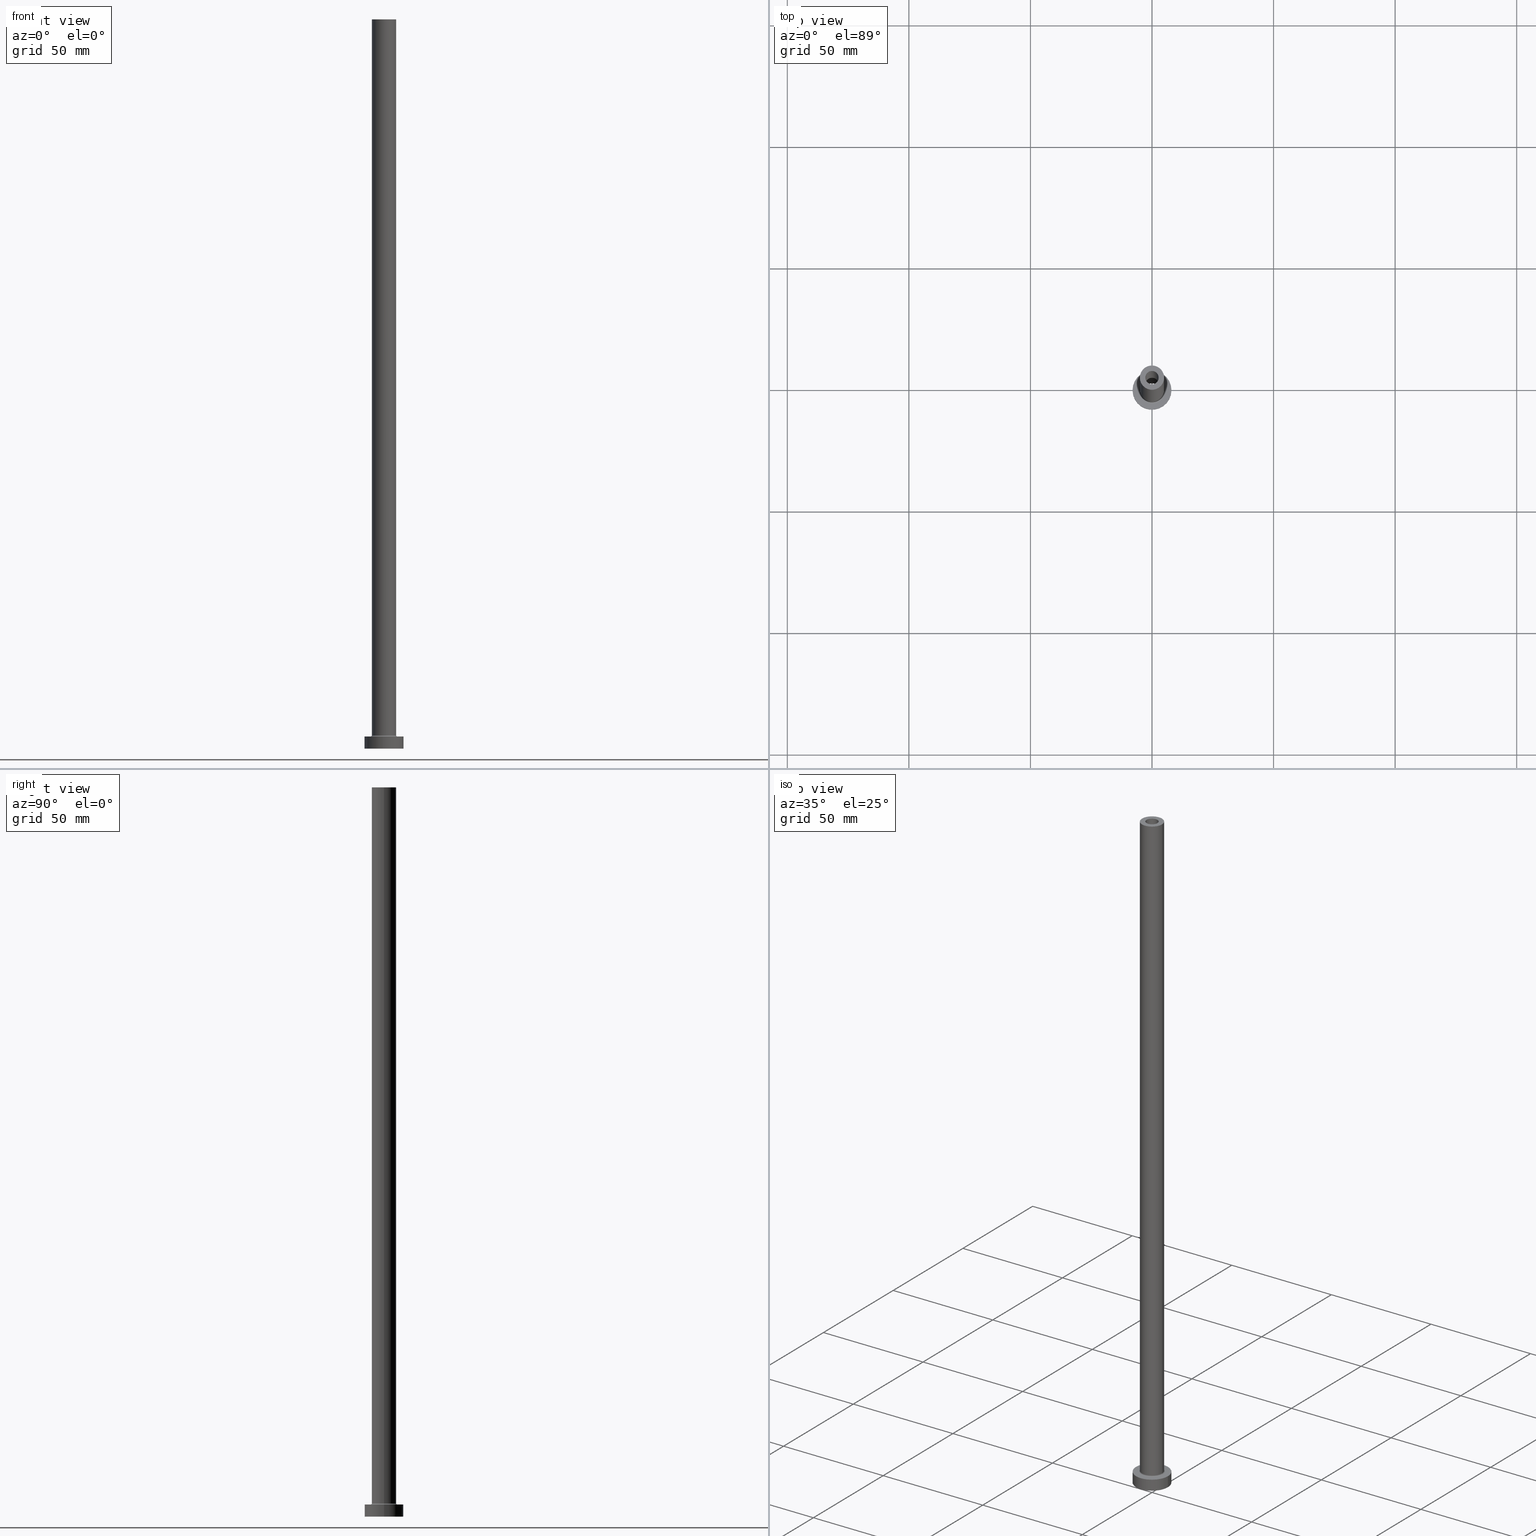
[diagram: canonical four-view strip — front | top / right | iso, engineering-drawing reading convention]
A machine part, canonical four-view strip (front | top / right | iso — engineering-drawing reading convention). The complete STEP part file that produces these views, byte-faithful:
ISO-10303-21;
HEADER;
FILE_DESCRIPTION (( 'STEP AP203' ),
    '1' );
FILE_NAME ('34f9.STEP',
    '2023-02-13T16:13:25',
    ( '' ),
    ( '' ),
    'SwSTEP 2.0',
    'SolidWorks 2019',
    '' );
FILE_SCHEMA (( 'CONFIG_CONTROL_DESIGN' ));
ENDSEC;

DATA;
#1 = CARTESIAN_POINT ( 'NONE',  ( -2.750000000000000000, 0.000000000000000000, 300.0000000000000000 ) ) ;
#2 = DIRECTION ( 'NONE',  ( 1.000000000000000000, 0.000000000000000000, 0.000000000000000000 ) ) ;
#3 = VECTOR ( 'NONE', #230, 1000.000000000000000 ) ;
#4 = COORDINATED_UNIVERSAL_TIME_OFFSET ( 1, 0, .AHEAD. ) ;
#5 = DIRECTION ( 'NONE',  ( -1.000000000000000000, 0.000000000000000000, 0.000000000000000000 ) ) ;
#6 = ORIENTED_EDGE ( 'NONE', *, *, #356, .F. ) ;
#7 = DIRECTION ( 'NONE',  ( 1.000000000000000000, 0.000000000000000000, 0.000000000000000000 ) ) ;
#8 = CIRCLE ( 'NONE', #131, 0.5000000000000004441 ) ;
#9 = SECURITY_CLASSIFICATION ( '', '', #457 ) ;
#10 = UNCERTAINTY_MEASURE_WITH_UNIT (LENGTH_MEASURE( 1.000000000000000082E-05 ), #425, 'distance_accuracy_value', 'NONE');
#11 = EDGE_CURVE ( 'NONE', #132, #237, #461, .T. ) ;
#12 = FACE_BOUND ( 'NONE', #147, .T. ) ;
#13 = COORDINATED_UNIVERSAL_TIME_OFFSET ( 1, 0, .AHEAD. ) ;
#14 = DIRECTION ( 'NONE',  ( 1.000000000000000000, 0.000000000000000000, 0.000000000000000000 ) ) ;
#15 = DIRECTION ( 'NONE',  ( 0.000000000000000000, 0.000000000000000000, 1.000000000000000000 ) ) ;
#16 = EDGE_LOOP ( 'NONE', ( #24, #163, #73, #449 ) ) ;
#17 = DIRECTION ( 'NONE',  ( 1.000000000000000000, 0.000000000000000000, 0.000000000000000000 ) ) ;
#18 = DIRECTION ( 'NONE',  ( 1.000000000000000000, 0.000000000000000000, 0.000000000000000000 ) ) ;
#19 = CIRCLE ( 'NONE', #149, 5.000000000000000000 ) ;
#20 = DIRECTION ( 'NONE',  ( 1.000000000000000000, 0.000000000000000000, 0.000000000000000000 ) ) ;
#21 = DIRECTION ( 'NONE',  ( 0.000000000000000000, 0.000000000000000000, 1.000000000000000000 ) ) ;
#22 = LINE ( 'NONE', #312, #194 ) ;
#23 = EDGE_LOOP ( 'NONE', ( #153, #373 ) ) ;
#24 = ORIENTED_EDGE ( 'NONE', *, *, #244, .F. ) ;
#25 = PERSON_AND_ORGANIZATION ( #434, #437 ) ;
#26 = DIRECTION ( 'NONE',  ( 0.000000000000000000, 0.000000000000000000, 1.000000000000000000 ) ) ;
#27 = PRODUCT_DEFINITION_FORMATION_WITH_SPECIFIED_SOURCE ( 'LIBOVOLN�', '', #351, .NOT_KNOWN. ) ;
#28 = DIRECTION ( 'NONE',  ( 1.000000000000000000, 0.000000000000000000, -0.000000000000000000 ) ) ;
#29 = CIRCLE ( 'NONE', #100, 5.000000000000000000 ) ;
#30 = CC_DESIGN_PERSON_AND_ORGANIZATION_ASSIGNMENT ( #320, #174, ( #27 ) ) ;
#31 = COORDINATED_UNIVERSAL_TIME_OFFSET ( 1, 0, .AHEAD. ) ;
#32 = EDGE_CURVE ( 'NONE', #406, #134, #430, .T. ) ;
#33 = APPLICATION_PROTOCOL_DEFINITION ( 'international standard', 'config_control_design', 1994, #432 ) ;
#34 = APPROVAL_PERSON_ORGANIZATION ( #228, #155, #439 ) ;
#35 = CARTESIAN_POINT ( 'NONE',  ( 8.000000000000000000, 9.797174393178825657E-16, 5.000000000000000000 ) ) ;
#36 = APPROVAL_STATUS ( 'not_yet_approved' ) ;
#37 = PERSON_AND_ORGANIZATION ( #434, #437 ) ;
#38 = ORIENTED_EDGE ( 'NONE', *, *, #388, .F. ) ;
#39 = ADVANCED_FACE ( 'NONE', ( #336 ), #79, .T. ) ;
#40 = ORIENTED_EDGE ( 'NONE', *, *, #431, .T. ) ;
#41 = DIRECTION ( 'NONE',  ( 1.000000000000000000, 0.000000000000000000, 0.000000000000000000 ) ) ;
#42 = PLANE ( 'NONE',  #191 ) ;
#43 = LOCAL_TIME ( 17, 13, 25.00000000000000000, #4 ) ;
#44 = AXIS2_PLACEMENT_3D ( 'NONE', #55, #162, #85 ) ;
#45 = CARTESIAN_POINT ( 'NONE',  ( 0.000000000000000000, 0.000000000000000000, 300.0000000000000000 ) ) ;
#46 = EDGE_CURVE ( 'NONE', #237, #132, #417, .T. ) ;
#47 = DIRECTION ( 'NONE',  ( 1.000000000000000000, 0.000000000000000000, 0.000000000000000000 ) ) ;
#48 = ORIENTED_EDGE ( 'NONE', *, *, #46, .T. ) ;
#49 = DIRECTION ( 'NONE',  ( -1.000000000000000000, 0.000000000000000000, 0.000000000000000000 ) ) ;
#50 = EDGE_CURVE ( 'NONE', #116, #111, #22, .T. ) ;
#51 = LINE ( 'NONE', #198, #274 ) ;
#52 = AXIS2_PLACEMENT_3D ( 'NONE', #263, #392, #2 ) ;
#53 = CC_DESIGN_SECURITY_CLASSIFICATION ( #9, ( #27 ) ) ;
#54 = CARTESIAN_POINT ( 'NONE',  ( 0.000000000000000000, 0.000000000000000000, 5.000000000000000000 ) ) ;
#55 = CARTESIAN_POINT ( 'NONE',  ( -5.500000000000000000, 6.735557395310442023E-16, 5.500000000000005329 ) ) ;
#56 = CARTESIAN_POINT ( 'NONE',  ( 0.000000000000000000, 0.000000000000000000, 5.000000000000000000 ) ) ;
#57 = ORIENTED_EDGE ( 'NONE', *, *, #356, .T. ) ;
#58 = DIRECTION ( 'NONE',  ( 0.000000000000000000, 0.000000000000000000, 1.000000000000000000 ) ) ;
#59 = TOROIDAL_SURFACE ( 'NONE', #299, 5.500000000000000000, 0.5000000000000000000 ) ;
#60 = AXIS2_PLACEMENT_3D ( 'NONE', #212, #378, #381 ) ;
#61 = ORIENTED_EDGE ( 'NONE', *, *, #401, .T. ) ;
#62 = CARTESIAN_POINT ( 'NONE',  ( 0.000000000000000000, 0.000000000000000000, 5.000000000000000000 ) ) ;
#63 = EDGE_CURVE ( 'NONE', #302, #132, #218, .T. ) ;
#64 = DIRECTION ( 'NONE',  ( 1.000000000000000000, 0.000000000000000000, 0.000000000000000000 ) ) ;
#65 = CALENDAR_DATE ( 2023, 13, 2 ) ;
#66 = APPLICATION_PROTOCOL_DEFINITION ( 'international standard', 'config_control_design', 1994, #455 ) ;
#67 = AXIS2_PLACEMENT_3D ( 'NONE', #80, #441, #240 ) ;
#68 = CIRCLE ( 'NONE', #204, 8.000000000000000000 ) ;
#69 = ADVANCED_FACE ( 'NONE', ( #211 ), #419, .F. ) ;
#70 = APPROVAL_ROLE ( '' ) ;
#71 = CARTESIAN_POINT ( 'NONE',  ( 0.000000000000000000, 0.000000000000000000, 255.0000000000000000 ) ) ;
#72 = APPROVAL ( #36, 'NEUR�EN�' ) ;
#73 = ORIENTED_EDGE ( 'NONE', *, *, #224, .T. ) ;
#74 = CIRCLE ( 'NONE', #393, 2.750000000000000000 ) ;
#75 = EDGE_LOOP ( 'NONE', ( #103, #120, #276, #193 ) ) ;
#76 = ORIENTED_EDGE ( 'NONE', *, *, #388, .T. ) ;
#77 = AXIS2_PLACEMENT_3D ( 'NONE', #62, #221, #223 ) ;
#78 = CARTESIAN_POINT ( 'NONE',  ( 0.000000000000000000, 0.000000000000000000, 300.0000000000000000 ) ) ;
#79 = CYLINDRICAL_SURFACE ( 'NONE', #229, 5.000000000000000000 ) ;
#80 = CARTESIAN_POINT ( 'NONE',  ( 0.000000000000000000, 0.000000000000000000, 300.0000000000000000 ) ) ;
#81 = ORIENTED_EDGE ( 'NONE', *, *, #311, .F. ) ;
#82 = CC_DESIGN_APPROVAL ( #236, ( #9 ) ) ;
#83 = LINE ( 'NONE', #161, #3 ) ;
#84 = ORIENTED_EDGE ( 'NONE', *, *, #11, .F. ) ;
#85 = DIRECTION ( 'NONE',  ( -1.000000000000000000, 1.224646799147351482E-16, 0.000000000000000000 ) ) ;
#86 = TOROIDAL_SURFACE ( 'NONE', #157, 5.500000000000000000, 0.5000000000000000000 ) ;
#87 = AXIS2_PLACEMENT_3D ( 'NONE', #130, #282, #280 ) ;
#88 = PERSON_AND_ORGANIZATION_ROLE ( 'creator' ) ;
#89 = ORIENTED_EDGE ( 'NONE', *, *, #101, .T. ) ;
#90 = ADVANCED_FACE ( 'NONE', ( #285, #93 ), #250, .F. ) ;
#91 = CARTESIAN_POINT ( 'NONE',  ( -5.000000000000000000, 0.000000000000000000, 300.0000000000000000 ) ) ;
#92 = EDGE_LOOP ( 'NONE', ( #48, #252 ) ) ;
#93 = FACE_OUTER_BOUND ( 'NONE', #303, .T. ) ;
#94 = ORIENTED_EDGE ( 'NONE', *, *, #296, .T. ) ;
#95 = LINE ( 'NONE', #35, #181 ) ;
#96 = CALENDAR_DATE ( 2023, 13, 2 ) ;
#97 = DIRECTION ( 'NONE',  ( -0.000000000000000000, -0.000000000000000000, -1.000000000000000000 ) ) ;
#98 = CYLINDRICAL_SURFACE ( 'NONE', #414, 8.000000000000000000 ) ;
#99 = FACE_OUTER_BOUND ( 'NONE', #129, .T. ) ;
#100 = AXIS2_PLACEMENT_3D ( 'NONE', #169, #456, #41 ) ;
#101 = EDGE_CURVE ( 'NONE', #220, #302, #29, .T. ) ;
#102 = ORIENTED_EDGE ( 'NONE', *, *, #50, .T. ) ;
#103 = ORIENTED_EDGE ( 'NONE', *, *, #128, .F. ) ;
#104 = PERSON_AND_ORGANIZATION ( #434, #437 ) ;
#105 = VERTEX_POINT ( 'NONE', #136 ) ;
#106 = CARTESIAN_POINT ( 'NONE',  ( 2.750000000000000000, 3.367778697655220519E-16, 300.0000000000000000 ) ) ;
#107 = VECTOR ( 'NONE', #394, 1000.000000000000000 ) ;
#108 = LOCAL_TIME ( 17, 13, 25.00000000000000000, #389 ) ;
#109 = DIRECTION ( 'NONE',  ( 0.000000000000000000, 0.000000000000000000, 1.000000000000000000 ) ) ;
#110 = EDGE_CURVE ( 'NONE', #215, #116, #150, .T. ) ;
#111 = VERTEX_POINT ( 'NONE', #173 ) ;
#112 = CARTESIAN_POINT ( 'NONE',  ( 0.000000000000000000, 0.000000000000000000, 5.000000000000000000 ) ) ;
#113 = ADVANCED_BREP_SHAPE_REPRESENTATION ( '34f9', ( #197, #396 ), #370 ) ;
#114 = ORIENTED_EDGE ( 'NONE', *, *, #448, .F. ) ;
#115 = CC_DESIGN_PERSON_AND_ORGANIZATION_ASSIGNMENT ( #104, #166, ( #27 ) ) ;
#116 = VERTEX_POINT ( 'NONE', #106 ) ;
#117 = ORIENTED_EDGE ( 'NONE', *, *, #110, .F. ) ;
#118 = ADVANCED_FACE ( 'NONE', ( #423, #99 ), #386, .T. ) ;
#119 = DIRECTION ( 'NONE',  ( 0.000000000000000000, 0.000000000000000000, 1.000000000000000000 ) ) ;
#120 = ORIENTED_EDGE ( 'NONE', *, *, #146, .T. ) ;
#121 = EDGE_CURVE ( 'NONE', #215, #440, #325, .T. ) ;
#122 = EDGE_LOOP ( 'NONE', ( #233, #38 ) ) ;
#123 = AXIS2_PLACEMENT_3D ( 'NONE', #190, #340, #7 ) ;
#124 = CARTESIAN_POINT ( 'NONE',  ( -2.750000000000000000, 0.000000000000000000, 255.0000000000000000 ) ) ;
#125 = DIRECTION ( 'NONE',  ( 1.000000000000000000, 0.000000000000000000, 0.000000000000000000 ) ) ;
#126 = CARTESIAN_POINT ( 'NONE',  ( 0.000000000000000000, 0.000000000000000000, 5.000000000000000000 ) ) ;
#127 = LINE ( 'NONE', #277, #405 ) ;
#128 = EDGE_CURVE ( 'NONE', #105, #420, #139, .T. ) ;
#129 = EDGE_LOOP ( 'NONE', ( #452, #94 ) ) ;
#130 = CARTESIAN_POINT ( 'NONE',  ( 0.000000000000000000, 0.000000000000000000, 0.000000000000000000 ) ) ;
#131 = AXIS2_PLACEMENT_3D ( 'NONE', #231, #300, #372 ) ;
#132 = VERTEX_POINT ( 'NONE', #341 ) ;
#133 = DIRECTION ( 'NONE',  ( 1.000000000000000000, 0.000000000000000000, -0.000000000000000000 ) ) ;
#134 = VERTEX_POINT ( 'NONE', #298 ) ;
#135 = ORIENTED_EDGE ( 'NONE', *, *, #209, .F. ) ;
#136 = CARTESIAN_POINT ( 'NONE',  ( 2.899999999999999911, 3.551475717527323832E-16, 255.0000000000000000 ) ) ;
#137 = ADVANCED_FACE ( 'NONE', ( #268 ), #374, .F. ) ;
#138 = PERSON_AND_ORGANIZATION ( #434, #437 ) ;
#139 = LINE ( 'NONE', #265, #107 ) ;
#140 = APPROVAL_ROLE ( '' ) ;
#141 =( NAMED_UNIT ( * ) SI_UNIT ( $, .STERADIAN. ) SOLID_ANGLE_UNIT ( ) );
#142 = CARTESIAN_POINT ( 'NONE',  ( -5.000000000000000000, 0.000000000000000000, 5.500000000000005329 ) ) ;
#143 = DATE_AND_TIME ( #361, #43 ) ;
#144 = CC_DESIGN_APPROVAL ( #72, ( #27 ) ) ;
#145 = ORIENTED_EDGE ( 'NONE', *, *, #307, .T. ) ;
#146 = EDGE_CURVE ( 'NONE', #105, #179, #369, .T. ) ;
#147 = EDGE_LOOP ( 'NONE', ( #367, #313 ) ) ;
#148 = FACE_BOUND ( 'NONE', #260, .T. ) ;
#149 = AXIS2_PLACEMENT_3D ( 'NONE', #328, #355, #422 ) ;
#150 = CIRCLE ( 'NONE', #292, 2.750000000000000000 ) ;
#151 = PLANE ( 'NONE',  #321 ) ;
#152 = AXIS2_PLACEMENT_3D ( 'NONE', #199, #15, #18 ) ;
#153 = ORIENTED_EDGE ( 'NONE', *, *, #311, .T. ) ;
#154 = DIRECTION ( 'NONE',  ( 0.000000000000000000, 0.000000000000000000, -1.000000000000000000 ) ) ;
#155 = APPROVAL ( #337, 'NEUR�EN�' ) ;
#156 = CARTESIAN_POINT ( 'NONE',  ( -2.899999999999999911, 0.000000000000000000, 255.0000000000000000 ) ) ;
#157 = AXIS2_PLACEMENT_3D ( 'NONE', #208, #344, #17 ) ;
#158 = CC_DESIGN_APPROVAL ( #155, ( #395 ) ) ;
#159 = ORIENTED_EDGE ( 'NONE', *, *, #239, .F. ) ;
#160 = CARTESIAN_POINT ( 'NONE',  ( 5.000000000000000000, 6.123233995736766282E-16, 300.0000000000000000 ) ) ;
#161 = CARTESIAN_POINT ( 'NONE',  ( -8.000000000000000000, 0.000000000000000000, 5.000000000000000000 ) ) ;
#162 = DIRECTION ( 'NONE',  ( 1.224646799147353207E-16, 1.000000000000000000, -0.000000000000000000 ) ) ;
#163 = ORIENTED_EDGE ( 'NONE', *, *, #360, .F. ) ;
#164 = DIRECTION ( 'NONE',  ( -1.000000000000000000, 0.000000000000000000, 0.000000000000000000 ) ) ;
#165 = CIRCLE ( 'NONE', #275, 2.899999999999999911 ) ;
#166 = PERSON_AND_ORGANIZATION_ROLE ( 'creator' ) ;
#167 = ORIENTED_EDGE ( 'NONE', *, *, #239, .T. ) ;
#168 = DIRECTION ( 'NONE',  ( -1.000000000000000000, 0.000000000000000000, 0.000000000000000000 ) ) ;
#169 = CARTESIAN_POINT ( 'NONE',  ( 0.000000000000000000, 0.000000000000000000, 5.500000000000005329 ) ) ;
#170 = FACE_OUTER_BOUND ( 'NONE', #16, .T. ) ;
#171 = DATE_AND_TIME ( #428, #421 ) ;
#172 = EDGE_LOOP ( 'NONE', ( #418, #269, #76, #442 ) ) ;
#173 = CARTESIAN_POINT ( 'NONE',  ( 2.750000000000000000, 3.367778697655220519E-16, 255.0000000000000000 ) ) ;
#174 = PERSON_AND_ORGANIZATION_ROLE ( 'design_supplier' ) ;
#175 = CIRCLE ( 'NONE', #357, 2.750000000000000000 ) ;
#176 = DIRECTION ( 'NONE',  ( -1.000000000000000000, 0.000000000000000000, 0.000000000000000000 ) ) ;
#177 = DIRECTION ( 'NONE',  ( 0.000000000000000000, 0.000000000000000000, -1.000000000000000000 ) ) ;
#178 = AXIS2_PLACEMENT_3D ( 'NONE', #126, #412, #205 ) ;
#179 = VERTEX_POINT ( 'NONE', #156 ) ;
#180 = FACE_OUTER_BOUND ( 'NONE', #217, .T. ) ;
#181 = VECTOR ( 'NONE', #253, 1000.000000000000000 ) ;
#182 = APPROVAL_PERSON_ORGANIZATION ( #266, #236, #70 ) ;
#183 = CARTESIAN_POINT ( 'NONE',  ( 0.000000000000000000, 0.000000000000000000, 0.000000000000000000 ) ) ;
#184 = ORIENTED_EDGE ( 'NONE', *, *, #264, .T. ) ;
#185 = VERTEX_POINT ( 'NONE', #407 ) ;
#186 = CARTESIAN_POINT ( 'NONE',  ( 0.000000000000000000, 0.000000000000000000, 255.0000000000000000 ) ) ;
#187 = ADVANCED_FACE ( 'NONE', ( #362 ), #382, .T. ) ;
#188 = VERTEX_POINT ( 'NONE', #454 ) ;
#189 = DIRECTION ( 'NONE',  ( 0.000000000000000000, 0.000000000000000000, -1.000000000000000000 ) ) ;
#190 = CARTESIAN_POINT ( 'NONE',  ( 0.000000000000000000, 0.000000000000000000, 0.000000000000000000 ) ) ;
#191 = AXIS2_PLACEMENT_3D ( 'NONE', #183, #119, #270 ) ;
#192 = CC_DESIGN_DATE_AND_TIME_ASSIGNMENT ( #256, #353, ( #395 ) ) ;
#193 = ORIENTED_EDGE ( 'NONE', *, *, #368, .T. ) ;
#194 = VECTOR ( 'NONE', #246, 1000.000000000000000 ) ;
#195 = FACE_OUTER_BOUND ( 'NONE', #122, .T. ) ;
#196 = DIRECTION ( 'NONE',  ( 0.000000000000000000, 0.000000000000000000, 1.000000000000000000 ) ) ;
#197 = MANIFOLD_SOLID_BREP ( 'Odebrat vysunut�m4', #346 ) ;
#198 = CARTESIAN_POINT ( 'NONE',  ( -5.000000000000000000, 0.000000000000000000, 300.0000000000000000 ) ) ;
#199 = CARTESIAN_POINT ( 'NONE',  ( 0.000000000000000000, 0.000000000000000000, 0.000000000000000000 ) ) ;
#200 = ORIENTED_EDGE ( 'NONE', *, *, #146, .F. ) ;
#201 = DIRECTION ( 'NONE',  ( 0.000000000000000000, 0.000000000000000000, 1.000000000000000000 ) ) ;
#202 = FACE_OUTER_BOUND ( 'NONE', #317, .T. ) ;
#203 = ADVANCED_FACE ( 'NONE', ( #202 ), #86, .F. ) ;
#204 = AXIS2_PLACEMENT_3D ( 'NONE', #112, #297, #238 ) ;
#205 = DIRECTION ( 'NONE',  ( 1.000000000000000000, 0.000000000000000000, 0.000000000000000000 ) ) ;
#206 = EDGE_LOOP ( 'NONE', ( #371, #167, #89, #210 ) ) ;
#207 = FACE_OUTER_BOUND ( 'NONE', #333, .T. ) ;
#208 = CARTESIAN_POINT ( 'NONE',  ( 0.000000000000000000, 0.000000000000000000, 5.500000000000005329 ) ) ;
#209 = EDGE_CURVE ( 'NONE', #111, #440, #288, .T. ) ;
#210 = ORIENTED_EDGE ( 'NONE', *, *, #431, .F. ) ;
#211 = FACE_OUTER_BOUND ( 'NONE', #453, .T. ) ;
#212 = CARTESIAN_POINT ( 'NONE',  ( 0.000000000000000000, 0.000000000000000000, 263.2024386617639493 ) ) ;
#213 = ORIENTED_EDGE ( 'NONE', *, *, #128, .T. ) ;
#214 = AXIS2_PLACEMENT_3D ( 'NONE', #54, #376, #168 ) ;
#215 = VERTEX_POINT ( 'NONE', #411 ) ;
#216 = LOCAL_TIME ( 17, 13, 25.00000000000000000, #287 ) ;
#217 = EDGE_LOOP ( 'NONE', ( #159, #81, #40, #57 ) ) ;
#218 = CIRCLE ( 'NONE', #44, 0.5000000000000004441 ) ;
#219 = DIRECTION ( 'NONE',  ( 0.000000000000000000, 0.000000000000000000, 1.000000000000000000 ) ) ;
#220 = VERTEX_POINT ( 'NONE', #347 ) ;
#221 = DIRECTION ( 'NONE',  ( 0.000000000000000000, 0.000000000000000000, 1.000000000000000000 ) ) ;
#222 = DIRECTION ( 'NONE',  ( -0.000000000000000000, -0.000000000000000000, -1.000000000000000000 ) ) ;
#223 = DIRECTION ( 'NONE',  ( 1.000000000000000000, 0.000000000000000000, -0.000000000000000000 ) ) ;
#224 = EDGE_CURVE ( 'NONE', #188, #406, #83, .T. ) ;
#225 = CIRCLE ( 'NONE', #67, 5.000000000000000000 ) ;
#226 = DATE_AND_TIME ( #65, #108 ) ;
#227 = APPROVAL_PERSON_ORGANIZATION ( #25, #72, #140 ) ;
#228 = PERSON_AND_ORGANIZATION ( #434, #437 ) ;
#229 = AXIS2_PLACEMENT_3D ( 'NONE', #278, #255, #446 ) ;
#230 = DIRECTION ( 'NONE',  ( -0.000000000000000000, -0.000000000000000000, -1.000000000000000000 ) ) ;
#231 = CARTESIAN_POINT ( 'NONE',  ( 5.500000000000000000, 0.000000000000000000, 5.500000000000005329 ) ) ;
#232 = AXIS2_PLACEMENT_3D ( 'NONE', #234, #267, #403 ) ;
#233 = ORIENTED_EDGE ( 'NONE', *, *, #32, .F. ) ;
#234 = CARTESIAN_POINT ( 'NONE',  ( 0.000000000000000000, 0.000000000000000000, 0.000000000000000000 ) ) ;
#235 = CARTESIAN_POINT ( 'NONE',  ( 0.000000000000000000, 0.000000000000000000, 5.500000000000005329 ) ) ;
#236 = APPROVAL ( #397, 'NEUR�EN�' ) ;
#237 = VERTEX_POINT ( 'NONE', #295 ) ;
#238 = DIRECTION ( 'NONE',  ( 1.000000000000000000, 0.000000000000000000, 0.000000000000000000 ) ) ;
#239 = EDGE_CURVE ( 'NONE', #443, #220, #326, .T. ) ;
#240 = DIRECTION ( 'NONE',  ( 1.000000000000000000, 0.000000000000000000, 0.000000000000000000 ) ) ;
#241 = CIRCLE ( 'NONE', #123, 2.899999999999999911 ) ;
#242 = APPROVAL_DATE_TIME ( #447, #155 ) ;
#243 = ADVANCED_FACE ( 'NONE', ( #180 ), #460, .T. ) ;
#244 = EDGE_CURVE ( 'NONE', #304, #134, #95, .T. ) ;
#245 = ORIENTED_EDGE ( 'NONE', *, *, #63, .F. ) ;
#246 = DIRECTION ( 'NONE',  ( 0.000000000000000000, 0.000000000000000000, -1.000000000000000000 ) ) ;
#247 = APPROVAL_DATE_TIME ( #171, #72 ) ;
#248 = CYLINDRICAL_SURFACE ( 'NONE', #60, 2.899999999999999911 ) ;
#249 = ORIENTED_EDGE ( 'NONE', *, *, #50, .F. ) ;
#250 = PLANE ( 'NONE',  #258 ) ;
#251 = CC_DESIGN_PERSON_AND_ORGANIZATION_ASSIGNMENT ( #37, #390, ( #351 ) ) ;
#252 = ORIENTED_EDGE ( 'NONE', *, *, #11, .T. ) ;
#253 = DIRECTION ( 'NONE',  ( -0.000000000000000000, -0.000000000000000000, -1.000000000000000000 ) ) ;
#254 = VECTOR ( 'NONE', #177, 1000.000000000000000 ) ;
#255 = DIRECTION ( 'NONE',  ( -0.000000000000000000, -0.000000000000000000, -1.000000000000000000 ) ) ;
#256 = DATE_AND_TIME ( #96, #216 ) ;
#257 = DIRECTION ( 'NONE',  ( -0.000000000000000000, -0.000000000000000000, -1.000000000000000000 ) ) ;
#258 = AXIS2_PLACEMENT_3D ( 'NONE', #383, #58, #28 ) ;
#259 = DIRECTION ( 'NONE',  ( 0.000000000000000000, 0.000000000000000000, 1.000000000000000000 ) ) ;
#260 = EDGE_LOOP ( 'NONE', ( #117, #279 ) ) ;
#261 = DIRECTION ( 'NONE',  ( 1.000000000000000000, 0.000000000000000000, 0.000000000000000000 ) ) ;
#262 = MECHANICAL_CONTEXT ( 'NONE', #432, 'mechanical' ) ;
#263 = CARTESIAN_POINT ( 'NONE',  ( 0.000000000000000000, 0.000000000000000000, 5.000000000000000000 ) ) ;
#264 = EDGE_CURVE ( 'NONE', #440, #111, #74, .T. ) ;
#265 = CARTESIAN_POINT ( 'NONE',  ( 2.899999999999999911, 3.551475717527323832E-16, 263.2024386617639493 ) ) ;
#266 = PERSON_AND_ORGANIZATION ( #434, #437 ) ;
#267 = DIRECTION ( 'NONE',  ( -0.000000000000000000, -0.000000000000000000, -1.000000000000000000 ) ) ;
#268 = FACE_OUTER_BOUND ( 'NONE', #438, .T. ) ;
#269 = ORIENTED_EDGE ( 'NONE', *, *, #244, .T. ) ;
#270 = DIRECTION ( 'NONE',  ( 1.000000000000000000, 0.000000000000000000, -0.000000000000000000 ) ) ;
#271 = EDGE_CURVE ( 'NONE', #443, #399, #19, .T. ) ;
#272 = ORIENTED_EDGE ( 'NONE', *, *, #110, .T. ) ;
#273 = DIRECTION ( 'NONE',  ( 1.000000000000000000, 0.000000000000000000, 0.000000000000000000 ) ) ;
#274 = VECTOR ( 'NONE', #350, 1000.000000000000000 ) ;
#275 = AXIS2_PLACEMENT_3D ( 'NONE', #186, #334, #47 ) ;
#276 = ORIENTED_EDGE ( 'NONE', *, *, #448, .T. ) ;
#277 = CARTESIAN_POINT ( 'NONE',  ( -2.899999999999999911, 0.000000000000000000, 263.2024386617639493 ) ) ;
#278 = CARTESIAN_POINT ( 'NONE',  ( 0.000000000000000000, 0.000000000000000000, 300.0000000000000000 ) ) ;
#279 = ORIENTED_EDGE ( 'NONE', *, *, #401, .F. ) ;
#280 = DIRECTION ( 'NONE',  ( 1.000000000000000000, 0.000000000000000000, 0.000000000000000000 ) ) ;
#281 = ORIENTED_EDGE ( 'NONE', *, *, #365, .T. ) ;
#282 = DIRECTION ( 'NONE',  ( 0.000000000000000000, 0.000000000000000000, 1.000000000000000000 ) ) ;
#283 = CC_DESIGN_PERSON_AND_ORGANIZATION_ASSIGNMENT ( #375, #88, ( #395 ) ) ;
#284 = ORIENTED_EDGE ( 'NONE', *, *, #319, .T. ) ;
#285 = FACE_BOUND ( 'NONE', #309, .T. ) ;
#286 = CARTESIAN_POINT ( 'NONE',  ( 0.000000000000000000, 0.000000000000000000, 255.0000000000000000 ) ) ;
#287 = COORDINATED_UNIVERSAL_TIME_OFFSET ( 1, 0, .AHEAD. ) ;
#288 = CIRCLE ( 'NONE', #404, 2.750000000000000000 ) ;
#289 = CARTESIAN_POINT ( 'NONE',  ( 0.000000000000000000, 0.000000000000000000, 300.0000000000000000 ) ) ;
#290 = ADVANCED_FACE ( 'NONE', ( #170 ), #98, .T. ) ;
#291 = DIRECTION ( 'NONE',  ( -1.000000000000000000, 0.000000000000000000, 0.000000000000000000 ) ) ;
#292 = AXIS2_PLACEMENT_3D ( 'NONE', #289, #259, #64 ) ;
#293 = AXIS2_PLACEMENT_3D ( 'NONE', #235, #402, #14 ) ;
#294 = APPROVAL_DATE_TIME ( #143, #236 ) ;
#295 = CARTESIAN_POINT ( 'NONE',  ( 5.500000000000000000, 0.000000000000000000, 5.000000000000002665 ) ) ;
#296 = EDGE_CURVE ( 'NONE', #304, #188, #444, .T. ) ;
#297 = DIRECTION ( 'NONE',  ( 0.000000000000000000, 0.000000000000000000, 1.000000000000000000 ) ) ;
#298 = CARTESIAN_POINT ( 'NONE',  ( 8.000000000000000000, 9.797174393178825657E-16, 0.000000000000000000 ) ) ;
#299 = AXIS2_PLACEMENT_3D ( 'NONE', #409, #201, #20 ) ;
#300 = DIRECTION ( 'NONE',  ( 0.000000000000000000, -1.000000000000000000, 0.000000000000000000 ) ) ;
#301 = DIRECTION ( 'NONE',  ( 1.000000000000000000, 0.000000000000000000, 0.000000000000000000 ) ) ;
#302 = VERTEX_POINT ( 'NONE', #142 ) ;
#303 = EDGE_LOOP ( 'NONE', ( #380, #200 ) ) ;
#304 = VERTEX_POINT ( 'NONE', #398 ) ;
#305 = CIRCLE ( 'NONE', #232, 2.899999999999999911 ) ;
#306 = CARTESIAN_POINT ( 'NONE',  ( -8.000000000000000000, 0.000000000000000000, 0.000000000000000000 ) ) ;
#307 = EDGE_CURVE ( 'NONE', #420, #185, #305, .T. ) ;
#308 = AXIS2_PLACEMENT_3D ( 'NONE', #310, #352, #164 ) ;
#309 = EDGE_LOOP ( 'NONE', ( #184, #410 ) ) ;
#310 = CARTESIAN_POINT ( 'NONE',  ( 0.000000000000000000, 0.000000000000000000, 300.0000000000000000 ) ) ;
#311 = EDGE_CURVE ( 'NONE', #399, #443, #225, .T. ) ;
#312 = CARTESIAN_POINT ( 'NONE',  ( 2.750000000000000000, 3.367778697655220519E-16, 300.0000000000000000 ) ) ;
#313 = ORIENTED_EDGE ( 'NONE', *, *, #307, .F. ) ;
#314 = AXIS2_PLACEMENT_3D ( 'NONE', #342, #154, #5 ) ;
#315 = LOCAL_TIME ( 17, 13, 25.00000000000000000, #13 ) ;
#316 = CC_DESIGN_PERSON_AND_ORGANIZATION_ASSIGNMENT ( #138, #424, ( #9 ) ) ;
#317 = EDGE_LOOP ( 'NONE', ( #245, #429, #284, #84 ) ) ;
#318 = CARTESIAN_POINT ( 'NONE',  ( 5.000000000000000000, 6.123233995736766282E-16, 300.0000000000000000 ) ) ;
#319 = EDGE_CURVE ( 'NONE', #220, #237, #8, .T. ) ;
#320 = PERSON_AND_ORGANIZATION ( #434, #437 ) ;
#321 = AXIS2_PLACEMENT_3D ( 'NONE', #78, #364, #133 ) ;
#322 = ADVANCED_FACE ( 'NONE', ( #12, #195 ), #42, .F. ) ;
#323 = CARTESIAN_POINT ( 'NONE',  ( 0.000000000000000000, 0.000000000000000000, 0.000000000000000000 ) ) ;
#324 = DIRECTION ( 'NONE',  ( -0.000000000000000000, -0.000000000000000000, -1.000000000000000000 ) ) ;
#325 = LINE ( 'NONE', #1, #254 ) ;
#326 = LINE ( 'NONE', #318, #339 ) ;
#327 = DATE_TIME_ROLE ( 'classification_date' ) ;
#328 = CARTESIAN_POINT ( 'NONE',  ( 0.000000000000000000, 0.000000000000000000, 300.0000000000000000 ) ) ;
#329 = AXIS2_PLACEMENT_3D ( 'NONE', #45, #189, #49 ) ;
#330 = SHAPE_DEFINITION_REPRESENTATION ( #345, #113 ) ;
#331 = ORIENTED_EDGE ( 'NONE', *, *, #121, .T. ) ;
#332 = FACE_OUTER_BOUND ( 'NONE', #75, .T. ) ;
#333 = EDGE_LOOP ( 'NONE', ( #281, #213, #145, #114 ) ) ;
#334 = DIRECTION ( 'NONE',  ( 0.000000000000000000, 0.000000000000000000, 1.000000000000000000 ) ) ;
#335 = EDGE_LOOP ( 'NONE', ( #6, #349, #391, #433 ) ) ;
#336 = FACE_OUTER_BOUND ( 'NONE', #206, .T. ) ;
#337 = APPROVAL_STATUS ( 'not_yet_approved' ) ;
#338 = CARTESIAN_POINT ( 'NONE',  ( 0.000000000000000000, 0.000000000000000000, 255.0000000000000000 ) ) ;
#339 = VECTOR ( 'NONE', #324, 1000.000000000000000 ) ;
#340 = DIRECTION ( 'NONE',  ( -0.000000000000000000, -0.000000000000000000, -1.000000000000000000 ) ) ;
#341 = CARTESIAN_POINT ( 'NONE',  ( -5.500000000000000000, 6.735557395310442023E-16, 5.000000000000002665 ) ) ;
#342 = CARTESIAN_POINT ( 'NONE',  ( 0.000000000000000000, 0.000000000000000000, 263.2024386617639493 ) ) ;
#343 = FACE_OUTER_BOUND ( 'NONE', #335, .T. ) ;
#344 = DIRECTION ( 'NONE',  ( 0.000000000000000000, 0.000000000000000000, 1.000000000000000000 ) ) ;
#345 = PRODUCT_DEFINITION_SHAPE ( 'NONE', 'NONE',  #395 ) ;
#346 = CLOSED_SHELL ( 'NONE', ( #69, #427, #435, #39, #187, #290, #118, #322, #243, #377, #203, #348, #90, #137 ) ) ;
#347 = CARTESIAN_POINT ( 'NONE',  ( 5.000000000000000000, 6.123233995736766282E-16, 5.500000000000005329 ) ) ;
#348 = ADVANCED_FACE ( 'NONE', ( #332 ), #363, .F. ) ;
#349 = ORIENTED_EDGE ( 'NONE', *, *, #63, .T. ) ;
#350 = DIRECTION ( 'NONE',  ( -0.000000000000000000, -0.000000000000000000, -1.000000000000000000 ) ) ;
#351 = PRODUCT ( '34f9', '34f9', '', ( #262 ) ) ;
#352 = DIRECTION ( 'NONE',  ( 0.000000000000000000, 0.000000000000000000, -1.000000000000000000 ) ) ;
#353 = DATE_TIME_ROLE ( 'creation_date' ) ;
#354 = ORIENTED_EDGE ( 'NONE', *, *, #121, .F. ) ;
#355 = DIRECTION ( 'NONE',  ( 0.000000000000000000, 0.000000000000000000, 1.000000000000000000 ) ) ;
#356 = EDGE_CURVE ( 'NONE', #302, #220, #451, .T. ) ;
#357 = AXIS2_PLACEMENT_3D ( 'NONE', #416, #26, #273 ) ;
#358 =( NAMED_UNIT ( * ) PLANE_ANGLE_UNIT ( ) SI_UNIT ( $, .RADIAN. ) );
#359 = AXIS2_PLACEMENT_3D ( 'NONE', #56, #97, #458 ) ;
#360 = EDGE_CURVE ( 'NONE', #188, #304, #68, .T. ) ;
#361 = CALENDAR_DATE ( 2023, 13, 2 ) ;
#362 = FACE_OUTER_BOUND ( 'NONE', #172, .T. ) ;
#363 = CYLINDRICAL_SURFACE ( 'NONE', #314, 2.899999999999999911 ) ;
#364 = DIRECTION ( 'NONE',  ( 0.000000000000000000, 0.000000000000000000, 1.000000000000000000 ) ) ;
#365 = EDGE_CURVE ( 'NONE', #179, #105, #165, .T. ) ;
#366 = DESIGN_CONTEXT ( 'detailed design', #455, 'design' ) ;
#367 = ORIENTED_EDGE ( 'NONE', *, *, #368, .F. ) ;
#368 = EDGE_CURVE ( 'NONE', #185, #420, #241, .T. ) ;
#369 = CIRCLE ( 'NONE', #400, 2.899999999999999911 ) ;
#370 =( GEOMETRIC_REPRESENTATION_CONTEXT ( 3 ) GLOBAL_UNCERTAINTY_ASSIGNED_CONTEXT ( ( #10 ) ) GLOBAL_UNIT_ASSIGNED_CONTEXT ( ( #425, #358, #141 ) ) REPRESENTATION_CONTEXT ( 'NONE', 'WORKASPACE' ) );
#371 = ORIENTED_EDGE ( 'NONE', *, *, #271, .F. ) ;
#372 = DIRECTION ( 'NONE',  ( 0.000000000000000000, 0.000000000000000000, -1.000000000000000000 ) ) ;
#373 = ORIENTED_EDGE ( 'NONE', *, *, #271, .T. ) ;
#374 = CYLINDRICAL_SURFACE ( 'NONE', #329, 2.750000000000000000 ) ;
#375 = PERSON_AND_ORGANIZATION ( #434, #437 ) ;
#376 = DIRECTION ( 'NONE',  ( -0.000000000000000000, -0.000000000000000000, -1.000000000000000000 ) ) ;
#377 = ADVANCED_FACE ( 'NONE', ( #148, #436 ), #151, .T. ) ;
#378 = DIRECTION ( 'NONE',  ( 0.000000000000000000, 0.000000000000000000, -1.000000000000000000 ) ) ;
#379 = CC_DESIGN_DATE_AND_TIME_ASSIGNMENT ( #226, #327, ( #9 ) ) ;
#380 = ORIENTED_EDGE ( 'NONE', *, *, #365, .F. ) ;
#381 = DIRECTION ( 'NONE',  ( -1.000000000000000000, 0.000000000000000000, 0.000000000000000000 ) ) ;
#382 = CYLINDRICAL_SURFACE ( 'NONE', #214, 8.000000000000000000 ) ;
#383 = CARTESIAN_POINT ( 'NONE',  ( 0.000000000000000000, 0.000000000000000000, 255.0000000000000000 ) ) ;
#384 = CIRCLE ( 'NONE', #87, 8.000000000000000000 ) ;
#385 = CARTESIAN_POINT ( 'NONE',  ( 0.000000000000000000, 0.000000000000000000, 300.0000000000000000 ) ) ;
#386 = PLANE ( 'NONE',  #77 ) ;
#387 = CARTESIAN_POINT ( 'NONE',  ( 0.000000000000000000, 0.000000000000000000, 5.000000000000000000 ) ) ;
#388 = EDGE_CURVE ( 'NONE', #134, #406, #384, .T. ) ;
#389 = COORDINATED_UNIVERSAL_TIME_OFFSET ( 1, 0, .AHEAD. ) ;
#390 = PERSON_AND_ORGANIZATION_ROLE ( 'design_owner' ) ;
#391 = ORIENTED_EDGE ( 'NONE', *, *, #46, .F. ) ;
#392 = DIRECTION ( 'NONE',  ( 0.000000000000000000, 0.000000000000000000, 1.000000000000000000 ) ) ;
#393 = AXIS2_PLACEMENT_3D ( 'NONE', #71, #109, #261 ) ;
#394 = DIRECTION ( 'NONE',  ( 0.000000000000000000, 0.000000000000000000, -1.000000000000000000 ) ) ;
#395 = PRODUCT_DEFINITION ( 'NEZN�M�', '', #27, #366 ) ;
#396 = AXIS2_PLACEMENT_3D ( 'NONE', #323, #219, #426 ) ;
#397 = APPROVAL_STATUS ( 'not_yet_approved' ) ;
#398 = CARTESIAN_POINT ( 'NONE',  ( 8.000000000000000000, 9.797174393178825657E-16, 5.000000000000000000 ) ) ;
#399 = VERTEX_POINT ( 'NONE', #91 ) ;
#400 = AXIS2_PLACEMENT_3D ( 'NONE', #338, #196, #301 ) ;
#401 = EDGE_CURVE ( 'NONE', #116, #215, #175, .T. ) ;
#402 = DIRECTION ( 'NONE',  ( 0.000000000000000000, 0.000000000000000000, 1.000000000000000000 ) ) ;
#403 = DIRECTION ( 'NONE',  ( 1.000000000000000000, 0.000000000000000000, 0.000000000000000000 ) ) ;
#404 = AXIS2_PLACEMENT_3D ( 'NONE', #286, #21, #125 ) ;
#405 = VECTOR ( 'NONE', #413, 1000.000000000000000 ) ;
#406 = VERTEX_POINT ( 'NONE', #306 ) ;
#407 = CARTESIAN_POINT ( 'NONE',  ( -2.899999999999999911, 0.000000000000000000, 0.000000000000000000 ) ) ;
#408 = PRODUCT_RELATED_PRODUCT_CATEGORY ( 'detail', '', ( #351 ) ) ;
#409 = CARTESIAN_POINT ( 'NONE',  ( 0.000000000000000000, 0.000000000000000000, 5.500000000000005329 ) ) ;
#410 = ORIENTED_EDGE ( 'NONE', *, *, #209, .T. ) ;
#411 = CARTESIAN_POINT ( 'NONE',  ( -2.750000000000000000, 0.000000000000000000, 300.0000000000000000 ) ) ;
#412 = DIRECTION ( 'NONE',  ( -0.000000000000000000, -0.000000000000000000, -1.000000000000000000 ) ) ;
#413 = DIRECTION ( 'NONE',  ( 0.000000000000000000, 0.000000000000000000, -1.000000000000000000 ) ) ;
#414 = AXIS2_PLACEMENT_3D ( 'NONE', #387, #257, #176 ) ;
#415 = ORIENTED_EDGE ( 'NONE', *, *, #264, .F. ) ;
#416 = CARTESIAN_POINT ( 'NONE',  ( 0.000000000000000000, 0.000000000000000000, 300.0000000000000000 ) ) ;
#417 = CIRCLE ( 'NONE', #178, 5.500000000000000000 ) ;
#418 = ORIENTED_EDGE ( 'NONE', *, *, #296, .F. ) ;
#419 = CYLINDRICAL_SURFACE ( 'NONE', #308, 2.750000000000000000 ) ;
#420 = VERTEX_POINT ( 'NONE', #445 ) ;
#421 = LOCAL_TIME ( 17, 13, 25.00000000000000000, #31 ) ;
#422 = DIRECTION ( 'NONE',  ( 1.000000000000000000, 0.000000000000000000, 0.000000000000000000 ) ) ;
#423 = FACE_BOUND ( 'NONE', #92, .T. ) ;
#424 = PERSON_AND_ORGANIZATION_ROLE ( 'classification_officer' ) ;
#425 =( LENGTH_UNIT ( ) NAMED_UNIT ( * ) SI_UNIT ( .MILLI., .METRE. ) );
#426 = DIRECTION ( 'NONE',  ( 1.000000000000000000, 0.000000000000000000, 0.000000000000000000 ) ) ;
#427 = ADVANCED_FACE ( 'NONE', ( #207 ), #248, .F. ) ;
#428 = CALENDAR_DATE ( 2023, 13, 2 ) ;
#429 = ORIENTED_EDGE ( 'NONE', *, *, #101, .F. ) ;
#430 = CIRCLE ( 'NONE', #152, 8.000000000000000000 ) ;
#431 = EDGE_CURVE ( 'NONE', #399, #302, #51, .T. ) ;
#432 = APPLICATION_CONTEXT ( 'configuration controlled 3d designs of mechanical parts and assemblies' ) ;
#433 = ORIENTED_EDGE ( 'NONE', *, *, #319, .F. ) ;
#434 = PERSON ( 'NEUR�EN�', 'NEUR�EN�', 'NEUR�EN�', ('NEUR�EN�'), ('NEUR�EN�'), ('NEUR�EN�') ) ;
#435 = ADVANCED_FACE ( 'NONE', ( #343 ), #59, .F. ) ;
#436 = FACE_OUTER_BOUND ( 'NONE', #23, .T. ) ;
#437 = ORGANIZATION ( 'NEUR�EN�', 'NEUR�EN�', '' ) ;
#438 = EDGE_LOOP ( 'NONE', ( #249, #61, #331, #135 ) ) ;
#439 = APPROVAL_ROLE ( '' ) ;
#440 = VERTEX_POINT ( 'NONE', #124 ) ;
#441 = DIRECTION ( 'NONE',  ( 0.000000000000000000, 0.000000000000000000, 1.000000000000000000 ) ) ;
#442 = ORIENTED_EDGE ( 'NONE', *, *, #224, .F. ) ;
#443 = VERTEX_POINT ( 'NONE', #160 ) ;
#444 = CIRCLE ( 'NONE', #52, 8.000000000000000000 ) ;
#445 = CARTESIAN_POINT ( 'NONE',  ( 2.899999999999999911, 3.551475717527323832E-16, 0.000000000000000000 ) ) ;
#446 = DIRECTION ( 'NONE',  ( -1.000000000000000000, 0.000000000000000000, 0.000000000000000000 ) ) ;
#447 = DATE_AND_TIME ( #450, #315 ) ;
#448 = EDGE_CURVE ( 'NONE', #179, #185, #127, .T. ) ;
#449 = ORIENTED_EDGE ( 'NONE', *, *, #32, .T. ) ;
#450 = CALENDAR_DATE ( 2023, 13, 2 ) ;
#451 = CIRCLE ( 'NONE', #293, 5.000000000000000000 ) ;
#452 = ORIENTED_EDGE ( 'NONE', *, *, #360, .T. ) ;
#453 = EDGE_LOOP ( 'NONE', ( #272, #102, #415, #354 ) ) ;
#454 = CARTESIAN_POINT ( 'NONE',  ( -8.000000000000000000, 0.000000000000000000, 5.000000000000000000 ) ) ;
#455 = APPLICATION_CONTEXT ( 'configuration controlled 3d designs of mechanical parts and assemblies' ) ;
#456 = DIRECTION ( 'NONE',  ( 0.000000000000000000, 0.000000000000000000, 1.000000000000000000 ) ) ;
#457 = SECURITY_CLASSIFICATION_LEVEL ( 'unclassified' ) ;
#458 = DIRECTION ( 'NONE',  ( 1.000000000000000000, 0.000000000000000000, 0.000000000000000000 ) ) ;
#459 = AXIS2_PLACEMENT_3D ( 'NONE', #385, #222, #291 ) ;
#460 = CYLINDRICAL_SURFACE ( 'NONE', #459, 5.000000000000000000 ) ;
#461 = CIRCLE ( 'NONE', #359, 5.500000000000000000 ) ;
ENDSEC;
END-ISO-10303-21;
